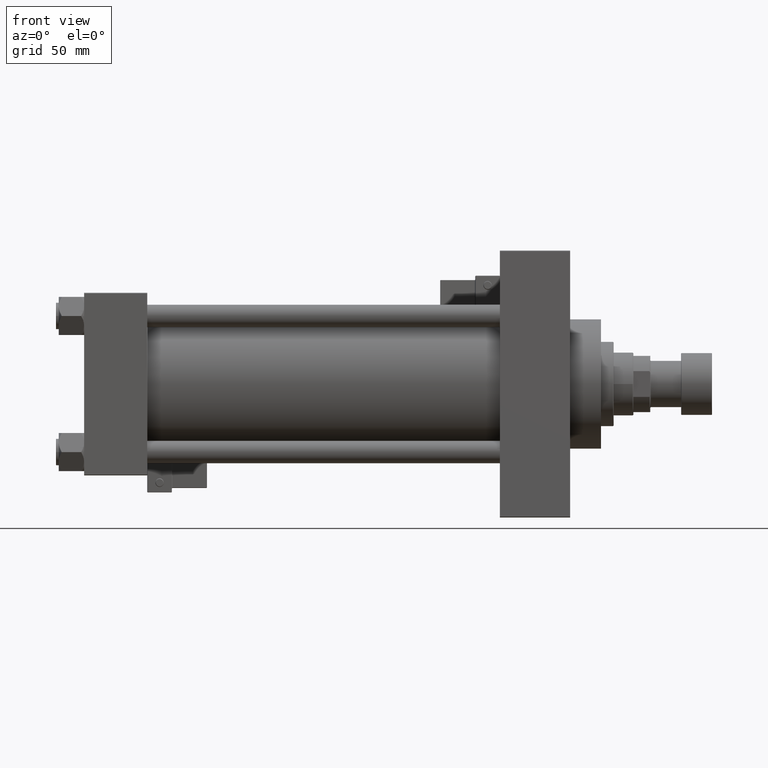
[diagram: clean part render]
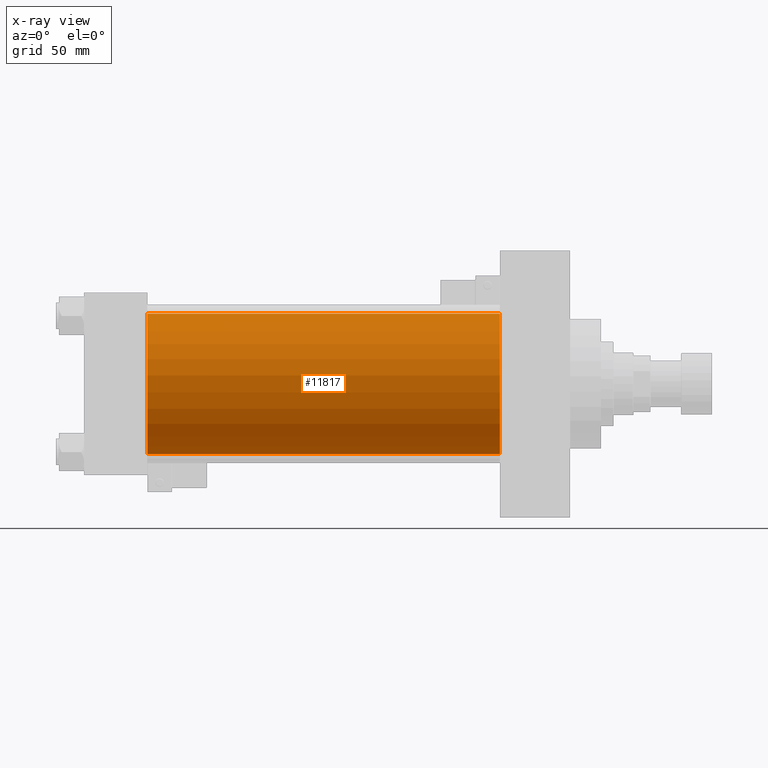
[diagram: x-ray — body ghosted, one internal face saturated and labeled with its STEP entity id]
A machine part, front view, then the same camera in x-ray: the body is ghosted and one INTERNAL B-rep face — a face not visible from any outside direction — is saturated and labeled: STEP entity #11817.
In plain terms, the highlighted cylindrical surface (partial cylindrical patch) has radius 50 mm, axis along (-1, -0, -0).
Its self-contained STEP definition (entity closure, byte-faithful):
#516 = FACE_OUTER_BOUND ( 'NONE', #4605, .T. ) ;
#903 = CARTESIAN_POINT ( 'NONE',  ( 296.0000000000000000, -2.602085213965210642E-15, 50.00000000000000000 ) ) ;
#3057 = CARTESIAN_POINT ( 'NONE',  ( 296.0000000000000000, -2.602085213965210642E-15, 50.00000000000000000 ) ) ;
#3839 = CYLINDRICAL_SURFACE ( 'NONE', #27839, 50.00000000000000000 ) ;
#4605 = EDGE_LOOP ( 'NONE', ( #11234, #11969, #5247, #28058 ) ) ;
#4847 = DIRECTION ( 'NONE',  ( 0.000000000000000000, 0.000000000000000000, -1.000000000000000000 ) ) ;
#5247 = ORIENTED_EDGE ( 'NONE', *, *, #37564, .F. ) ;
#6790 = CIRCLE ( 'NONE', #29522, 50.00000000000000000 ) ;
#7245 = VECTOR ( 'NONE', #18573, 1000.000000000000000 ) ;
#7443 = AXIS2_PLACEMENT_3D ( 'NONE', #19615, #20102, #4847 ) ;
#8418 = CARTESIAN_POINT ( 'NONE',  ( 296.0000000000000000, -2.602085213965210642E-15, 0.000000000000000000 ) ) ;
#11234 = ORIENTED_EDGE ( 'NONE', *, *, #13060, .T. ) ;
#11817 = ADVANCED_FACE ( 'NONE', ( #516 ), #3839, .F. ) ;
#11951 = DIRECTION ( 'NONE',  ( -1.000000000000000000, -0.000000000000000000, -0.000000000000000000 ) ) ;
#11969 = ORIENTED_EDGE ( 'NONE', *, *, #40948, .T. ) ;
#12763 = DIRECTION ( 'NONE',  ( 0.000000000000000000, 0.000000000000000000, -1.000000000000000000 ) ) ;
#13060 = EDGE_CURVE ( 'NONE', #29120, #23932, #29358, .T. ) ;
#16846 = DIRECTION ( 'NONE',  ( -1.000000000000000000, -0.000000000000000000, -0.000000000000000000 ) ) ;
#18573 = DIRECTION ( 'NONE',  ( -1.000000000000000000, -0.000000000000000000, -0.000000000000000000 ) ) ;
#19205 = CARTESIAN_POINT ( 'NONE',  ( 45.00000000000000000, -2.602085213965210642E-15, 50.00000000000000000 ) ) ;
#19615 = CARTESIAN_POINT ( 'NONE',  ( 296.0000000000000000, -2.602085213965210642E-15, 0.000000000000000000 ) ) ;
#20102 = DIRECTION ( 'NONE',  ( 1.000000000000000000, 0.000000000000000000, 0.000000000000000000 ) ) ;
#20425 = CARTESIAN_POINT ( 'NONE',  ( 296.0000000000000000, 3.521148781771555838E-15, -50.00000000000000000 ) ) ;
#20920 = LINE ( 'NONE', #20425, #47924 ) ;
#21596 = CARTESIAN_POINT ( 'NONE',  ( 296.0000000000000000, 3.521148781771555838E-15, -50.00000000000000000 ) ) ;
#22383 = LINE ( 'NONE', #3057, #7245 ) ;
#23650 = DIRECTION ( 'NONE',  ( 0.000000000000000000, 0.000000000000000000, 1.000000000000000000 ) ) ;
#23932 = VERTEX_POINT ( 'NONE', #21596 ) ;
#24466 = CARTESIAN_POINT ( 'NONE',  ( 45.00000000000000000, -2.602085213965210642E-15, 0.000000000000000000 ) ) ;
#27839 = AXIS2_PLACEMENT_3D ( 'NONE', #8418, #11951, #23650 ) ;
#28058 = ORIENTED_EDGE ( 'NONE', *, *, #39880, .F. ) ;
#29120 = VERTEX_POINT ( 'NONE', #903 ) ;
#29358 = CIRCLE ( 'NONE', #7443, 50.00000000000000000 ) ;
#29522 = AXIS2_PLACEMENT_3D ( 'NONE', #24466, #32352, #12763 ) ;
#32352 = DIRECTION ( 'NONE',  ( 1.000000000000000000, 0.000000000000000000, 0.000000000000000000 ) ) ;
#35505 = VERTEX_POINT ( 'NONE', #19205 ) ;
#35520 = CARTESIAN_POINT ( 'NONE',  ( 45.00000000000000000, 3.521148781771555838E-15, -50.00000000000000000 ) ) ;
#37564 = EDGE_CURVE ( 'NONE', #35505, #39442, #6790, .T. ) ;
#39442 = VERTEX_POINT ( 'NONE', #35520 ) ;
#39880 = EDGE_CURVE ( 'NONE', #29120, #35505, #22383, .T. ) ;
#40948 = EDGE_CURVE ( 'NONE', #23932, #39442, #20920, .T. ) ;
#47924 = VECTOR ( 'NONE', #16846, 1000.000000000000000 ) ;